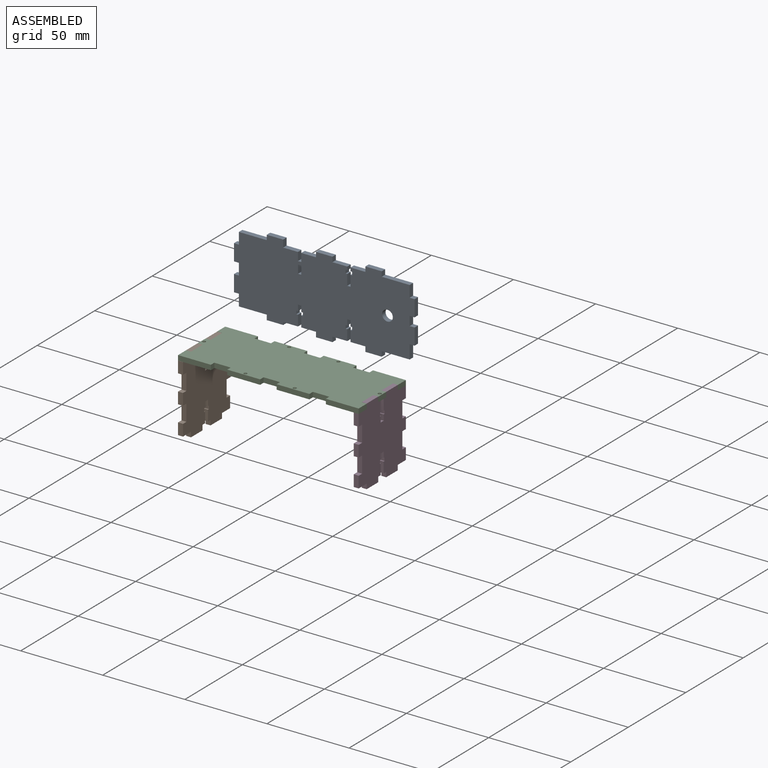
[diagram: assembled view]
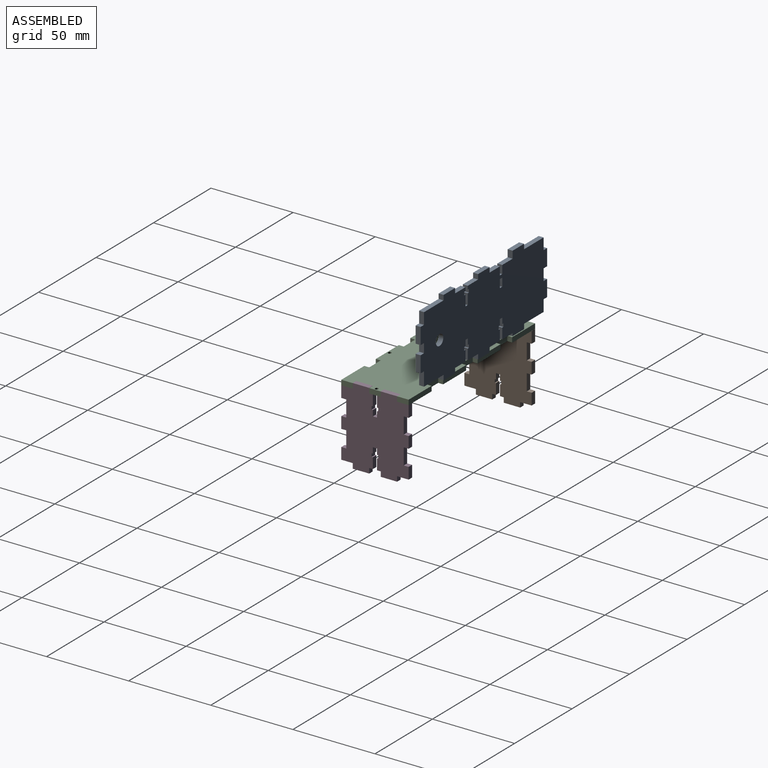
[diagram: assembled view, second angle]
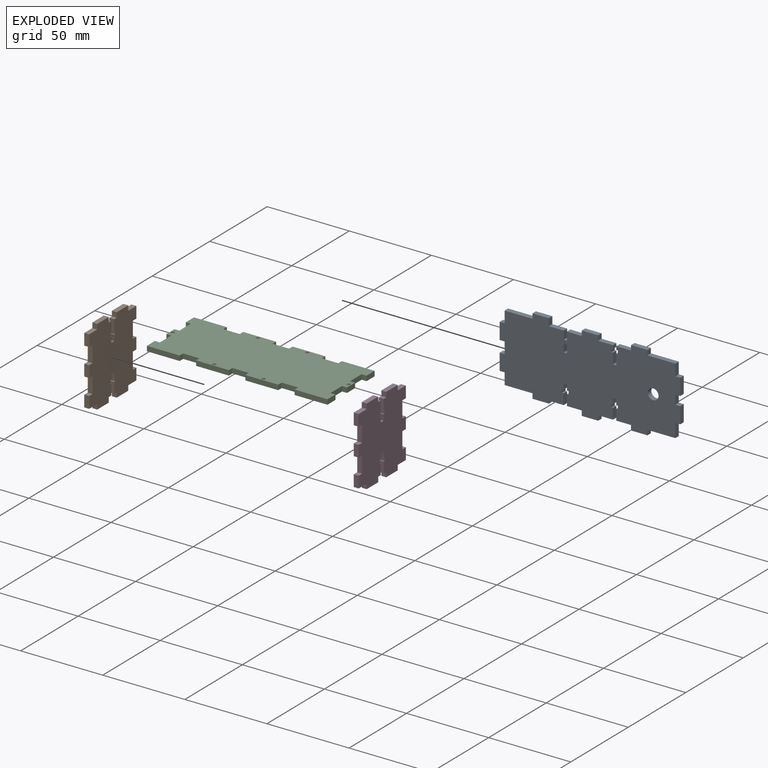
[diagram: exploded view]
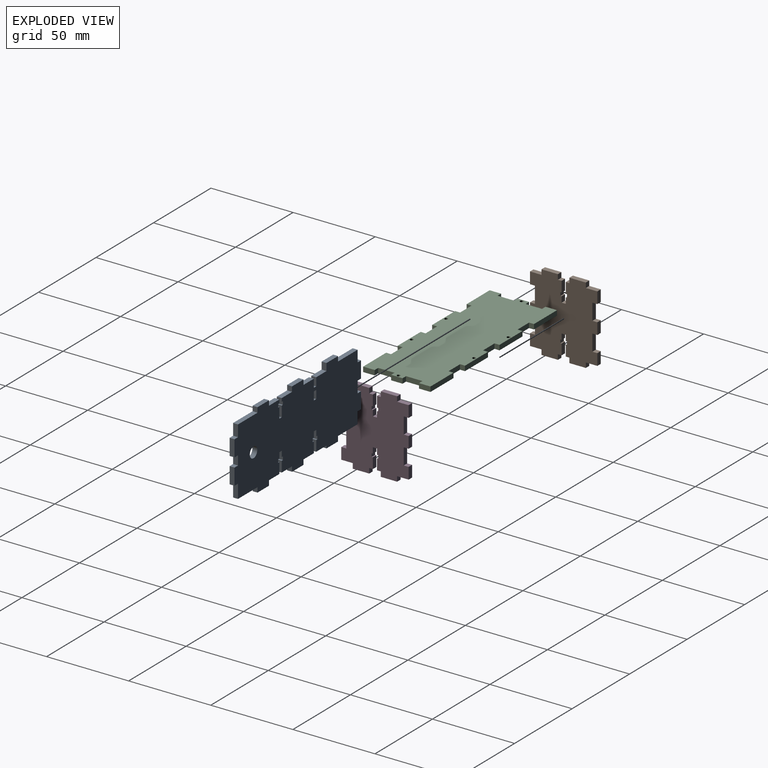
[diagram: exploded view, second angle]
ASSEMBLY  parts=4 mates=2
PART A: 91 faces, bbox 110x3x48.4 mm
  f0: plane 5x3mm, normal (1,0,0), area 15mm2, adj f1,f86,f89,f90
  f1: plane 3x2mm, normal (0,0,-1), area 6mm2, adj f0,f2,f89,f90
  f2: plane 5x3mm, normal (-1,0,0), area 15mm2, adj f1,f86,f89,f90
  f3: plane 3x2mm, normal (0,0,1), area 6mm2, adj f4,f87,f89,f90
  f4: plane 5x3mm, normal (1,0,0), area 15mm2, adj f3,f5,f89,f90
  f5: plane 9x3mm, normal (0,0,1), area 27mm2, adj f4,f6,f89,f90
  f6: plane 4.4x3mm, normal (1,0,0), area 13.2mm2, adj f5,f7,f89,f90
  f7: plane 10x3mm, normal (0,0,1), area 30mm2, adj f6,f8,f89,f90
  f8: plane 3x3mm, normal (-1,0,0), area 9mm2, adj f7,f9,f89,f90
  f9: plane 17x3mm, normal (0,0,1), area 51mm2, adj f8,f10,f89,f90
  f10: plane 7x3mm, normal (-1,0,0), area 21mm2, adj f9,f11,f89,f90
  f11: plane 3x3mm, normal (0,0,1), area 9mm2, adj f10,f12,f89,f90
  f12: plane 10x3mm, normal (-1,0,0), area 30mm2, adj f11,f13,f89,f90
  f13: plane 3x3mm, normal (0,0,-1), area 9mm2, adj f12,f14,f89,f90
  f14: plane 7x3mm, normal (-1,0,0), area 21mm2, adj f13,f15,f89,f90
  f15: plane 3x3mm, normal (0,0,1), area 9mm2, adj f14,f16,f89,f90
  f16: plane 10x3mm, normal (-1,0,0), area 30mm2, adj f15,f17,f89,f90
  f17: plane 3x3mm, normal (0,0,-1), area 9mm2, adj f16,f18,f89,f90
  f18: plane 7x3mm, normal (-1,0,0), area 21mm2, adj f17,f19,f89,f90
  f19: plane 17x3mm, normal (0,0,-1), area 51mm2, adj f18,f20,f89,f90
  f20: plane 3x3mm, normal (-1,0,0), area 9mm2, adj f19,f21,f89,f90
  f21: plane 10x3mm, normal (0,0,-1), area 30mm2, adj f20,f22,f89,f90
  f22: plane 3x1.6mm, normal (1,0,0), area 4.8mm2, adj f21,f23,f89,f90
  f23: plane 9x3mm, normal (0,0,-1), area 27mm2, adj f22,f24,f89,f90
  f24: plane 6.5x3mm, normal (1,0,0), area 19.5mm2, adj f23,f25,f89,f90
  f25: plane 3x1mm, normal (0,0,1), area 3mm2, adj f24,f26,f89,f90
  f26: plane 3x2mm, normal (1,0,0), area 6mm2, adj f25,f27,f89,f90
  f27: plane 3x1mm, normal (0,0,-1), area 3mm2, adj f26,f28,f89,f90
  f28: plane 3.5x3mm, normal (1,0,0), area 10.5mm2, adj f27,f29,f89,f90
  f29: plane 3x2mm, normal (0,0,-1), area 6mm2, adj f28,f30,f89,f90
  f30: plane 3.5x3mm, normal (-1,0,0), area 10.5mm2, adj f29,f31,f89,f90
  f31: plane 3x1mm, normal (0,0,-1), area 3mm2, adj f30,f32,f89,f90
  f32: plane 3x2mm, normal (-1,0,0), area 6mm2, adj f31,f33,f89,f90
  f33: plane 3x1mm, normal (0,0,1), area 3mm2, adj f32,f34,f89,f90
  f34: plane 6.5x3mm, normal (-1,0,0), area 19.5mm2, adj f33,f35,f89,f90
  f35: plane 9x3mm, normal (0,0,-1), area 27mm2, adj f34,f36,f89,f90
  f36: plane 3x3mm, normal (-1,0,0), area 9mm2, adj f35,f37,f89,f90
  f37: plane 10x3mm, normal (0,0,-1), area 30mm2, adj f36,f38,f89,f90
  f38: plane 3x3mm, normal (1,0,0), area 9mm2, adj f37,f39,f89,f90
  f39: plane 9x3mm, normal (0,0,-1), area 27mm2, adj f38,f40,f89,f90
  f40: plane 6.5x3mm, normal (1,0,0), area 19.5mm2, adj f39,f41,f89,f90
  f41: plane 3x1mm, normal (0,0,1), area 3mm2, adj f40,f42,f89,f90
  f42: plane 3x2mm, normal (1,0,0), area 6mm2, adj f41,f43,f89,f90
  f43: plane 3x1mm, normal (0,0,-1), area 3mm2, adj f42,f44,f89,f90
  f44: plane 3.5x3mm, normal (1,0,0), area 10.5mm2, adj f43,f45,f89,f90
  f45: plane 3x2mm, normal (0,0,-1), area 6mm2, adj f44,f46,f89,f90
  f46: plane 3.5x3mm, normal (-1,0,0), area 10.5mm2, adj f45,f47,f89,f90
  f47: plane 3x1mm, normal (0,0,-1), area 3mm2, adj f46,f48,f89,f90
  f48: plane 3x2mm, normal (-1,0,0), area 6mm2, adj f47,f49,f89,f90
  f49: plane 3x1mm, normal (0,0,1), area 3mm2, adj f48,f50,f89,f90
  f50: plane 6.5x3mm, normal (-1,0,0), area 19.5mm2, adj f49,f51,f89,f90
  f51: plane 9x3mm, normal (0,0,-1), area 27mm2, adj f50,f52,f89,f90
  f52: plane 3x3mm, normal (-1,0,0), area 9mm2, adj f51,f53,f89,f90
  f53: plane 10x3mm, normal (0,0,-1), area 30mm2, adj f52,f54,f89,f90
  f54: plane 3x3mm, normal (1,0,0), area 9mm2, adj f53,f55,f89,f90
  f55: plane 17x3mm, normal (0,0,-1), area 51mm2, adj f54,f56,f89,f90
  f56: plane 8.4x3mm, normal (1,0,0), area 25.2mm2, adj f55,f57,f89,f90
  f57: plane 3x3mm, normal (0,0,-1), area 9mm2, adj f56,f58,f89,f90
  f58: plane 10x3mm, normal (1,0,0), area 30mm2, adj f57,f59,f89,f90
  f59: plane 3x3mm, normal (0,0,1), area 9mm2, adj f58,f60,f89,f90
  f60: plane 5.6x3mm, normal (1,0,0), area 16.8mm2, adj f59,f61,f89,f90
  f61: plane 3x3mm, normal (0,0,-1), area 9mm2, adj f60,f62,f89,f90
  f62: plane 10x3mm, normal (1,0,0), area 30mm2, adj f61,f63,f89,f90
  f63: plane 3x3mm, normal (0,0,1), area 9mm2, adj f62,f64,f89,f90
  f64: plane 7x3mm, normal (1,0,0), area 21mm2, adj f63,f65,f89,f90
  f65: plane 17x3mm, normal (0,0,1), area 51mm2, adj f64,f66,f89,f90
  f66: plane 3x3mm, normal (1,0,0), area 9mm2, adj f65,f67,f89,f90
  f67: plane 10x3mm, normal (0,0,1), area 30mm2, adj f66,f68,f89,f90
  f68: plane 3x3mm, normal (-1,0,0), area 9mm2, adj f67,f69,f89,f90
  f69: plane 9x3mm, normal (0,0,1), area 27mm2, adj f68,f70,f89,f90
  f70: plane 3x2.1mm, normal (-1,0,0), area 6.3mm2, adj f69,f71,f89,f90
  f71: plane 3x1mm, normal (0,0,-1), area 3mm2, adj f70,f72,f89,f90
  f72: plane 3x2mm, normal (-1,0,0), area 6mm2, adj f71,f73,f89,f90
  f73: plane 3x1mm, normal (0,0,1), area 3mm2, adj f72,f74,f89,f90
  f74: plane 6.5x3mm, normal (-1,0,0), area 19.5mm2, adj f73,f75,f89,f90
  f75: plane 3x2mm, normal (0,0,1), area 6mm2, adj f74,f76,f89,f90
  f76: plane 6.5x3mm, normal (1,0,0), area 19.5mm2, adj f75,f77,f89,f90
  f77: plane 3x1mm, normal (0,0,1), area 3mm2, adj f76,f78,f89,f90
  f78: plane 3x2mm, normal (1,0,0), area 6mm2, adj f77,f79,f89,f90
  f79: plane 3x1mm, normal (0,0,-1), area 3mm2, adj f78,f80,f89,f90
  f80: plane 3x2.1mm, normal (1,0,0), area 6.3mm2, adj f79,f81,f89,f90
  f81: plane 9x3mm, normal (0,0,1), area 27mm2, adj f80,f82,f89,f90
  f82: plane 3x3mm, normal (1,0,0), area 9mm2, adj f81,f83,f89,f90
  f83: plane 10x3mm, normal (0,0,1), area 30mm2, adj f82,f84,f89,f90
  f84: plane 3x3mm, normal (-1,0,0), area 9mm2, adj f83,f85,f89,f90
  f85: plane 9x3mm, normal (0,0,1), area 27mm2, adj f84,f87,f89,f90
  f86: plane 3x2mm, normal (0,0,1), area 6mm2, adj f0,f2,f89,f90
  f87: plane 5x3mm, normal (-1,0,0), area 15mm2, adj f3,f85,f89,f90
  f88: cylinder r=3.25mm len=6.5mm, axis (0,1,0), area 61.3mm2, adj f89,f90
  f89: plane 110x48.4mm, normal (0,-1,0), area 4429.6mm2, adj f0,f1,f2,f3,f4,f5,f6,f7
  f90: plane 110x48.4mm, normal (0,1,0), area 4429.6mm2, adj f0,f1,f2,f3,f4,f5,f6,f7
PART B: 62 faces, bbox 41x3x47.1 mm
  f0: plane 3.5x3mm, normal (-1,0,0), area 10.5mm2, adj f1,f59,f60,f61
  f1: plane 3x0.75mm, normal (0,0,-1), area 2.3mm2, adj f0,f2,f60,f61
  f2: plane 3x2mm, normal (-1,0,0), area 6mm2, adj f1,f3,f60,f61
  f3: plane 3x0.75mm, normal (0,0,1), area 2.3mm2, adj f2,f4,f60,f61
  f4: plane 6.5x3mm, normal (-1,0,0), area 19.5mm2, adj f3,f5,f60,f61
  f5: plane 3x2.25mm, normal (0,0,-1), area 6.8mm2, adj f4,f6,f60,f61
  f6: plane 3.07x3mm, normal (-1,0,0), area 9.2mm2, adj f5,f7,f60,f61
  f7: plane 10x3mm, normal (0,0,-1), area 30mm2, adj f6,f8,f60,f61
  f8: plane 3.07x3mm, normal (1,0,0), area 9.2mm2, adj f7,f9,f60,f61
  f9: plane 7x3mm, normal (0,0,-1), area 21mm2, adj f8,f10,f60,f61
  f10: plane 7x3mm, normal (1,0,0), area 21mm2, adj f9,f11,f60,f61
  f11: plane 3x3mm, normal (0,0,1), area 9mm2, adj f10,f12,f60,f61
  f12: plane 10x3mm, normal (1,0,0), area 30mm2, adj f11,f13,f60,f61
  f13: plane 3x3mm, normal (0,0,-1), area 9mm2, adj f12,f14,f60,f61
  f14: plane 7x3mm, normal (1,0,0), area 21mm2, adj f13,f15,f60,f61
  f15: plane 3x3mm, normal (0,0,1), area 9mm2, adj f14,f16,f60,f61
  f16: plane 10x3mm, normal (1,0,0), area 30mm2, adj f15,f17,f60,f61
  f17: plane 3x3mm, normal (0,0,-1), area 9mm2, adj f16,f18,f60,f61
  f18: plane 7x3mm, normal (1,0,0), area 21mm2, adj f17,f19,f60,f61
  f19: plane 7x3mm, normal (0,0,1), area 21mm2, adj f18,f20,f60,f61
  f20: plane 3.07x3mm, normal (1,0,0), area 9.2mm2, adj f19,f21,f60,f61
  f21: plane 10x3mm, normal (0,0,1), area 30mm2, adj f20,f22,f60,f61
  f22: plane 3.07x3mm, normal (-1,0,0), area 9.2mm2, adj f21,f23,f60,f61
  f23: plane 3x2.25mm, normal (0,0,1), area 6.8mm2, adj f22,f24,f60,f61
  f24: plane 6.5x3mm, normal (-1,0,0), area 19.5mm2, adj f23,f25,f60,f61
  f25: plane 3x0.75mm, normal (0,0,-1), area 2.3mm2, adj f24,f26,f60,f61
  f26: plane 3x2mm, normal (-1,0,0), area 6mm2, adj f25,f27,f60,f61
  f27: plane 3x0.75mm, normal (0,0,1), area 2.3mm2, adj f26,f28,f60,f61
  f28: plane 3.5x3mm, normal (-1,0,0), area 10.5mm2, adj f27,f29,f60,f61
  f29: plane 3x2.5mm, normal (0,0,1), area 7.5mm2, adj f28,f30,f60,f61
  f30: plane 3.5x3mm, normal (1,0,0), area 10.5mm2, adj f29,f31,f60,f61
  f31: plane 3x0.75mm, normal (0,0,1), area 2.3mm2, adj f30,f32,f60,f61
  f32: plane 3x2mm, normal (1,0,0), area 6mm2, adj f31,f33,f60,f61
  f33: plane 3x0.75mm, normal (0,0,-1), area 2.3mm2, adj f32,f34,f60,f61
  f34: plane 6.5x3mm, normal (1,0,0), area 19.5mm2, adj f33,f35,f60,f61
  f35: plane 3x2.25mm, normal (0,0,1), area 6.7mm2, adj f34,f36,f60,f61
  f36: plane 3x3mm, normal (1,0,0), area 9mm2, adj f35,f37,f60,f61
  f37: plane 10x3mm, normal (0,0,1), area 30mm2, adj f36,f38,f60,f61
  f38: plane 3x3mm, normal (-1,0,0), area 9mm2, adj f37,f39,f60,f61
  f39: plane 7x3mm, normal (0,0,1), area 21mm2, adj f38,f40,f60,f61
  f40: plane 7x3mm, normal (-1,0,0), area 21mm2, adj f39,f41,f60,f61
  f41: plane 3x3mm, normal (0,0,-1), area 9mm2, adj f40,f42,f60,f61
  f42: plane 10x3mm, normal (-1,0,0), area 30mm2, adj f41,f43,f60,f61
  f43: plane 3x3mm, normal (0,0,1), area 9mm2, adj f42,f44,f60,f61
  f44: plane 7x3mm, normal (-1,0,0), area 21mm2, adj f43,f45,f60,f61
  f45: plane 3x3mm, normal (0,0,-1), area 9mm2, adj f44,f46,f60,f61
  f46: plane 10x3mm, normal (-1,0,0), area 30mm2, adj f45,f47,f60,f61
  f47: plane 3x3mm, normal (0,0,1), area 9mm2, adj f46,f48,f60,f61
  f48: plane 7x3mm, normal (-1,0,0), area 21mm2, adj f47,f49,f60,f61
  f49: plane 7x3mm, normal (0,0,-1), area 21mm2, adj f48,f50,f60,f61
  f50: plane 3x3mm, normal (-1,0,0), area 9mm2, adj f49,f51,f60,f61
  f51: plane 10x3mm, normal (0,0,-1), area 30mm2, adj f50,f52,f60,f61
  f52: plane 3x3mm, normal (1,0,0), area 9mm2, adj f51,f53,f60,f61
  f53: plane 3x2.25mm, normal (0,0,-1), area 6.7mm2, adj f52,f54,f60,f61
  f54: plane 6.5x3mm, normal (1,0,0), area 19.5mm2, adj f53,f55,f60,f61
  f55: plane 3x0.75mm, normal (0,0,1), area 2.3mm2, adj f54,f56,f60,f61
  f56: plane 3x2mm, normal (1,0,0), area 6mm2, adj f55,f57,f60,f61
  f57: plane 3x0.75mm, normal (0,0,-1), area 2.3mm2, adj f56,f58,f60,f61
  f58: plane 3.5x3mm, normal (1,0,0), area 10.5mm2, adj f57,f59,f60,f61
  f59: plane 3x2.5mm, normal (0,0,-1), area 7.5mm2, adj f0,f58,f60,f61
  f60: plane 47.15x41mm, normal (0,-1,0), area 1616.5mm2, adj f0,f1,f2,f3,f4,f5,f6,f7
  f61: plane 47.15x41mm, normal (0,1,0), area 1616.5mm2, adj f0,f1,f2,f3,f4,f5,f6,f7
PART C: 52 faces, bbox 110x41x3 mm
  f0: plane 3x3mm, normal (-1,0,0), area 9mm2, adj f1,f46,f50,f51
  f1: plane 10x3mm, normal (0,1,0), area 30mm2, adj f0,f2,f50,f51
  f2: plane 3x3mm, normal (1,0,0), area 9mm2, adj f1,f3,f50,f51
  f3: plane 20x3mm, normal (0,1,0), area 60mm2, adj f2,f4,f50,f51
  f4: plane 3x3mm, normal (-1,0,0), area 9mm2, adj f3,f5,f50,f51
  f5: plane 10x3mm, normal (0,1,0), area 30mm2, adj f4,f6,f50,f51
  f6: plane 3x3mm, normal (1,0,0), area 9mm2, adj f5,f7,f50,f51
  f7: plane 20x3mm, normal (0,1,0), area 60mm2, adj f6,f8,f50,f51
  f8: plane 3x3mm, normal (-1,0,0), area 9mm2, adj f7,f9,f50,f51
  f9: plane 10x3mm, normal (0,1,0), area 30mm2, adj f8,f10,f50,f51
  f10: plane 3x3mm, normal (1,0,0), area 9mm2, adj f9,f11,f50,f51
  f11: plane 20x3mm, normal (0,1,0), area 60mm2, adj f10,f12,f50,f51
  f12: plane 7x3mm, normal (-1,0,0), area 21mm2, adj f11,f13,f50,f51
  f13: plane 3x3mm, normal (0,-1,0), area 9mm2, adj f12,f14,f50,f51
  f14: plane 10x3mm, normal (-1,0,0), area 30mm2, adj f13,f15,f50,f51
  f15: plane 3x3mm, normal (0,1,0), area 9mm2, adj f14,f16,f50,f51
  f16: plane 7x3mm, normal (-1,0,0), area 21mm2, adj f15,f17,f50,f51
  f17: plane 3x3mm, normal (0,-1,0), area 9mm2, adj f16,f18,f50,f51
  f18: plane 10x3mm, normal (-1,0,0), area 30mm2, adj f17,f19,f50,f51
  f19: plane 3x3mm, normal (0,1,0), area 9mm2, adj f18,f20,f50,f51
  f20: plane 7x3mm, normal (-1,0,0), area 21mm2, adj f19,f21,f50,f51
  f21: plane 20x3mm, normal (0,-1,0), area 60mm2, adj f20,f22,f50,f51
  f22: plane 3x3mm, normal (1,0,0), area 9mm2, adj f21,f23,f50,f51
  f23: plane 10x3mm, normal (0,-1,0), area 30mm2, adj f22,f24,f50,f51
  f24: plane 3x3mm, normal (-1,0,0), area 9mm2, adj f23,f25,f50,f51
  f25: plane 20x3mm, normal (0,-1,0), area 60mm2, adj f24,f26,f50,f51
  f26: plane 3x3mm, normal (1,0,0), area 9mm2, adj f25,f27,f50,f51
  f27: plane 10x3mm, normal (0,-1,0), area 30mm2, adj f26,f28,f50,f51
  f28: plane 3x3mm, normal (-1,0,0), area 9mm2, adj f27,f29,f50,f51
  f29: plane 20x3mm, normal (0,-1,0), area 60mm2, adj f28,f30,f50,f51
  f30: plane 3x3mm, normal (1,0,0), area 9mm2, adj f29,f31,f50,f51
  f31: plane 10x3mm, normal (0,-1,0), area 30mm2, adj f30,f32,f50,f51
  f32: plane 3x3mm, normal (-1,0,0), area 9mm2, adj f31,f33,f50,f51
  f33: plane 20x3mm, normal (0,-1,0), area 60mm2, adj f32,f34,f50,f51
  f34: plane 7x3mm, normal (1,0,0), area 21mm2, adj f33,f35,f50,f51
  f35: plane 3x3mm, normal (0,1,0), area 9mm2, adj f34,f36,f50,f51
  f36: plane 10x3mm, normal (1,0,0), area 30mm2, adj f35,f37,f50,f51
  f37: plane 3x3mm, normal (0,-1,0), area 9mm2, adj f36,f38,f50,f51
  f38: plane 7x3mm, normal (1,0,0), area 21mm2, adj f37,f39,f50,f51
  f39: plane 3x3mm, normal (0,1,0), area 9mm2, adj f38,f40,f50,f51
  f40: plane 10x3mm, normal (1,0,0), area 30mm2, adj f39,f41,f50,f51
  f41: plane 3x3mm, normal (0,-1,0), area 9mm2, adj f40,f42,f50,f51
  f42: plane 7x3mm, normal (1,0,0), area 21mm2, adj f41,f46,f50,f51
  f43: cylinder r=1mm len=3mm, axis (0,0,-1), area 18.8mm2, adj f50,f51
  f44: cylinder r=1mm len=3mm, axis (0,0,-1), area 18.8mm2, adj f50,f51
  f45: cylinder r=1mm len=3mm, axis (0,0,-1), area 18.8mm2, adj f50,f51
  f46: plane 20x3mm, normal (0,1,0), area 60mm2, adj f0,f42,f50,f51
  f47: cylinder r=1mm len=3mm, axis (0,0,-1), area 18.8mm2, adj f50,f51
  f48: cylinder r=1mm len=3mm, axis (0,0,-1), area 18.8mm2, adj f50,f51
  f49: cylinder r=1mm len=3mm, axis (0,0,-1), area 18.8mm2, adj f50,f51
  f50: plane 110x41mm, normal (0,0,1), area 4191.2mm2, adj f0,f1,f2,f3,f4,f5,f6,f7
  f51: plane 110x41mm, normal (0,0,-1), area 4191.2mm2, adj f0,f1,f2,f3,f4,f5,f6,f7
PART D: same geometry as B
PLACE A t=(34.6,41.87,6.12)mm
PLACE B rot(axis=(0,0,-1),90deg) t=(-23.47,34.98,-5.86)mm
PLACE C t=(-24.97,-6.02,-4.28)mm fixed
PLACE D rot(axis=(0,0,-1),90deg) t=(83.53,34.98,-5.78)mm
MATE fastened D.f60 <-> C.f40  axis (-1,0,0) through (82.03,22.98,-2.78)mm
MATE fastened B.f61 <-> C.f18  axis (1,0,0) through (-21.97,5.98,-2.78)mm
